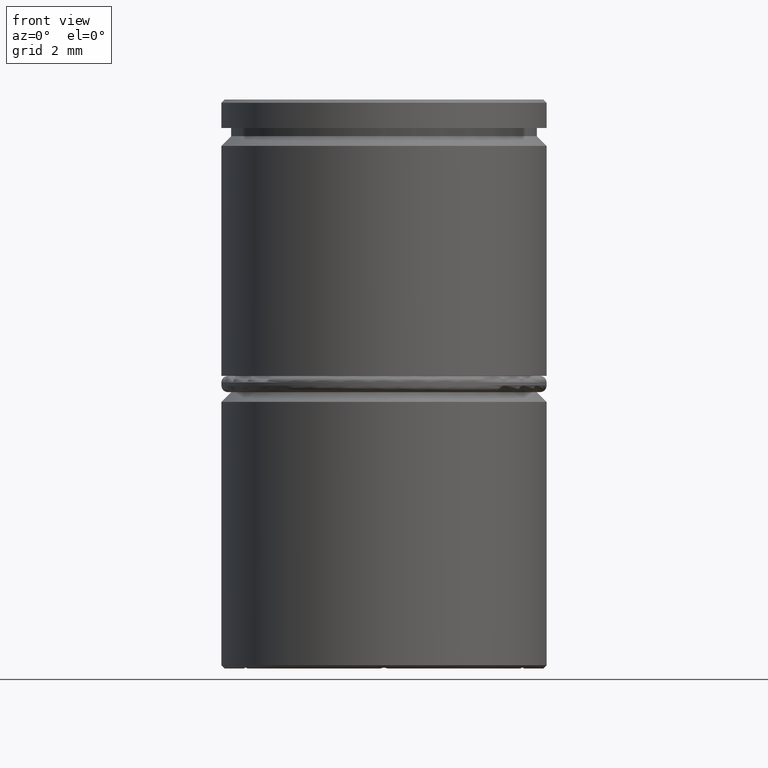
[diagram: clean part render]
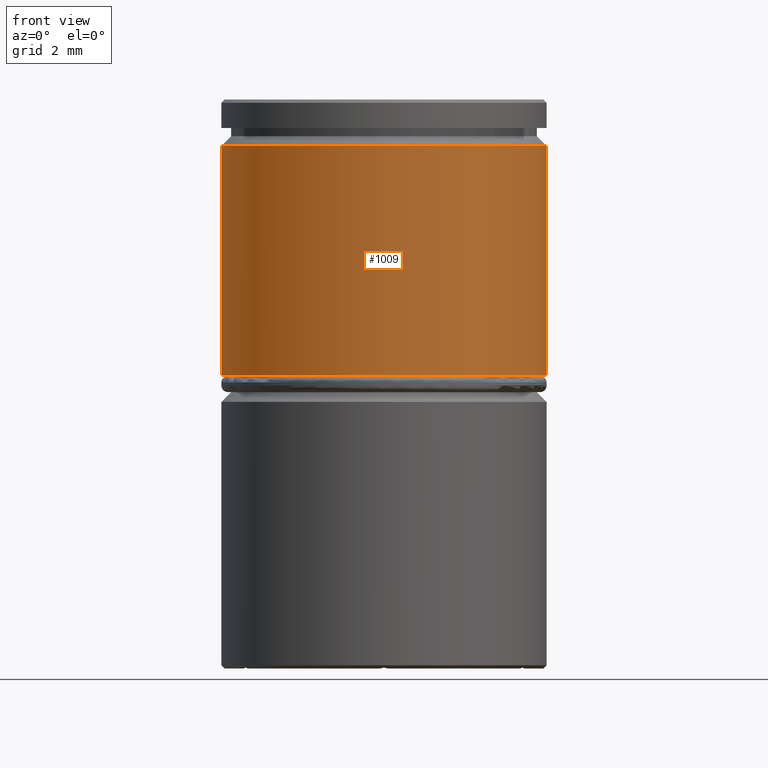
[diagram: same view with one face highlighted and labeled with its STEP entity id]
A machine part, front view. The second image highlights one B-rep face of the part: STEP entity #1009.
In plain terms, the highlighted cylindrical surface (partial cylindrical patch) has radius 5 mm, axis along (-0, -0, 1).
Its self-contained STEP definition (entity closure, byte-faithful):
#13 = LINE ( 'NONE', #426, #929 ) ;
#38 = VERTEX_POINT ( 'NONE', #1265 ) ;
#89 = CYLINDRICAL_SURFACE ( 'NONE', #846, 5.000000000000000000 ) ;
#116 = AXIS2_PLACEMENT_3D ( 'NONE', #880, #467, #346 ) ;
#126 = DIRECTION ( 'NONE',  ( -0.000000000000000000, -0.000000000000000000, 1.000000000000000000 ) ) ;
#140 = VECTOR ( 'NONE', #126, 1000.000000000000000 ) ;
#142 = EDGE_LOOP ( 'NONE', ( #473, #1025, #293, #662 ) ) ;
#172 = VERTEX_POINT ( 'NONE', #326 ) ;
#222 = CARTESIAN_POINT ( 'NONE',  ( 5.000000000000000000, 0.000000000000000000, -8.500000000000000000 ) ) ;
#293 = ORIENTED_EDGE ( 'NONE', *, *, #315, .T. ) ;
#315 = EDGE_CURVE ( 'NONE', #399, #172, #939, .T. ) ;
#326 = CARTESIAN_POINT ( 'NONE',  ( 5.000000000000000000, 0.000000000000000000, -1.424999999999994049 ) ) ;
#328 = CIRCLE ( 'NONE', #1256, 5.000000000000000000 ) ;
#346 = DIRECTION ( 'NONE',  ( 1.000000000000000000, 0.000000000000000000, 0.000000000000000000 ) ) ;
#397 = CARTESIAN_POINT ( 'NONE',  ( 0.000000000000000000, 0.000000000000000000, 0.000000000000000000 ) ) ;
#399 = VERTEX_POINT ( 'NONE', #222 ) ;
#414 = CARTESIAN_POINT ( 'NONE',  ( 0.000000000000000000, 0.000000000000000000, -1.424999999999994049 ) ) ;
#419 = DIRECTION ( 'NONE',  ( -0.000000000000000000, -0.000000000000000000, 1.000000000000000000 ) ) ;
#426 = CARTESIAN_POINT ( 'NONE',  ( -5.000000000000000000, 6.123233995736766282E-16, 0.000000000000000000 ) ) ;
#467 = DIRECTION ( 'NONE',  ( -0.000000000000000000, -0.000000000000000000, 1.000000000000000000 ) ) ;
#473 = ORIENTED_EDGE ( 'NONE', *, *, #1277, .F. ) ;
#476 = DIRECTION ( 'NONE',  ( -0.000000000000000000, -0.000000000000000000, 1.000000000000000000 ) ) ;
#549 = CARTESIAN_POINT ( 'NONE',  ( -5.000000000000000000, 6.123233995736766282E-16, -8.500000000000000000 ) ) ;
#599 = FACE_OUTER_BOUND ( 'NONE', #142, .T. ) ;
#662 = ORIENTED_EDGE ( 'NONE', *, *, #734, .T. ) ;
#734 = EDGE_CURVE ( 'NONE', #172, #38, #328, .T. ) ;
#846 = AXIS2_PLACEMENT_3D ( 'NONE', #397, #476, #1008 ) ;
#861 = CARTESIAN_POINT ( 'NONE',  ( 5.000000000000000000, 0.000000000000000000, 0.000000000000000000 ) ) ;
#880 = CARTESIAN_POINT ( 'NONE',  ( 0.000000000000000000, 0.000000000000000000, -8.500000000000000000 ) ) ;
#892 = CIRCLE ( 'NONE', #116, 5.000000000000000000 ) ;
#929 = VECTOR ( 'NONE', #419, 1000.000000000000000 ) ;
#939 = LINE ( 'NONE', #861, #140 ) ;
#1008 = DIRECTION ( 'NONE',  ( 1.000000000000000000, 0.000000000000000000, 0.000000000000000000 ) ) ;
#1009 = ADVANCED_FACE ( 'NONE', ( #599 ), #89, .T. ) ;
#1025 = ORIENTED_EDGE ( 'NONE', *, *, #1088, .T. ) ;
#1088 = EDGE_CURVE ( 'NONE', #1147, #399, #892, .T. ) ;
#1147 = VERTEX_POINT ( 'NONE', #549 ) ;
#1170 = DIRECTION ( 'NONE',  ( 1.000000000000000000, 0.000000000000000000, 0.000000000000000000 ) ) ;
#1256 = AXIS2_PLACEMENT_3D ( 'NONE', #414, #1285, #1170 ) ;
#1265 = CARTESIAN_POINT ( 'NONE',  ( -5.000000000000000000, 6.123233995736766282E-16, -1.424999999999994049 ) ) ;
#1277 = EDGE_CURVE ( 'NONE', #1147, #38, #13, .T. ) ;
#1285 = DIRECTION ( 'NONE',  ( 0.000000000000000000, 0.000000000000000000, -1.000000000000000000 ) ) ;